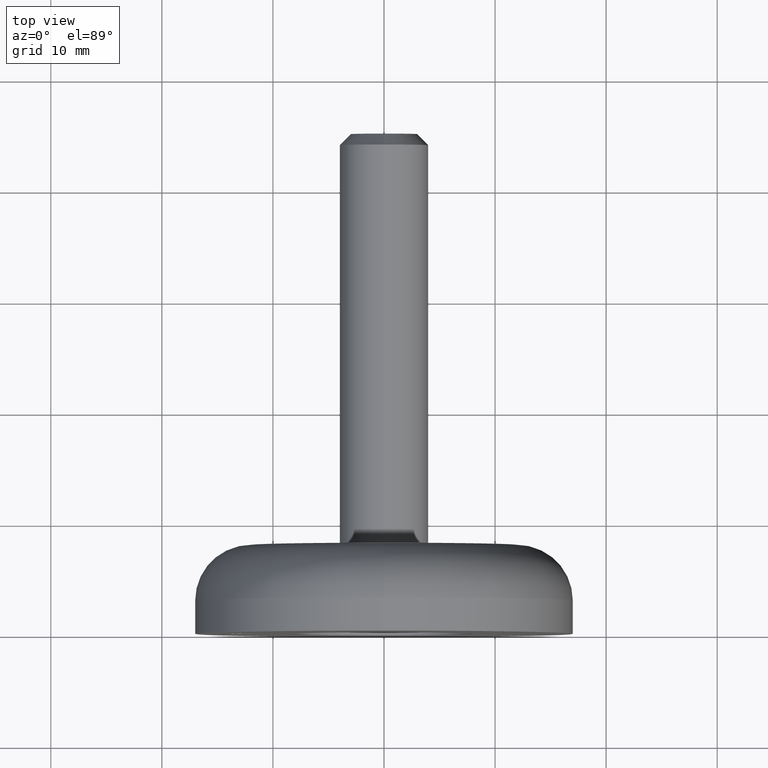
[diagram: clean part render]
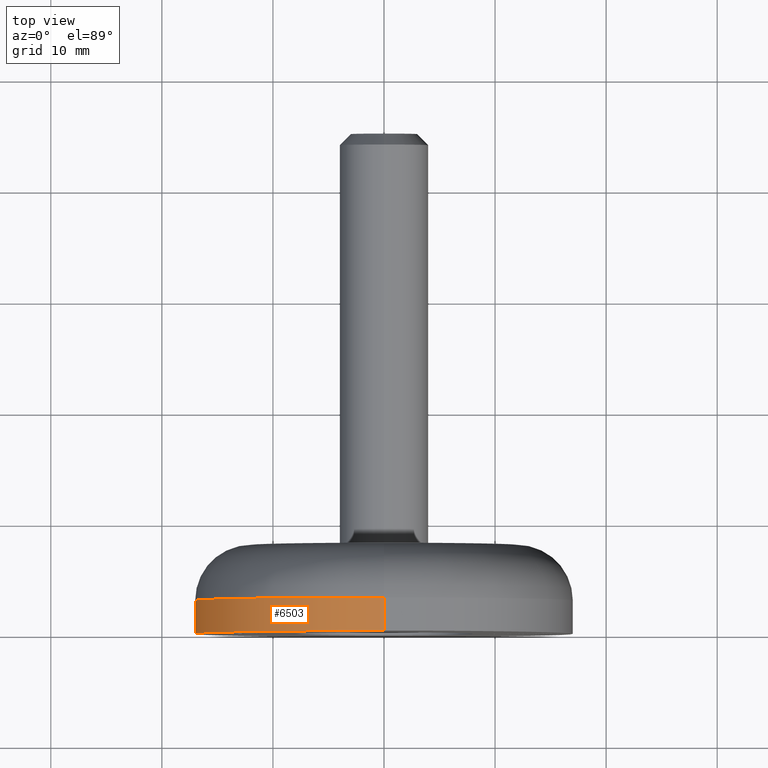
[diagram: same view with one face highlighted and labeled with its STEP entity id]
A machine part, top view. The second image highlights one B-rep face of the part: STEP entity #6503.
In plain terms, the highlighted cylindrical surface (partial cylindrical patch) has radius 17 mm, axis along (-0, -1, -0).
Its self-contained STEP definition (entity closure, byte-faithful):
#78 = DIRECTION ( 'NONE',  ( 0.000000000000000000, 0.000000000000000000, -1.000000000000000000 ) ) ;
#843 = EDGE_CURVE ( 'NONE', #5399, #1057, #13722, .T. ) ;
#1057 = VERTEX_POINT ( 'NONE', #12553 ) ;
#1315 = DIRECTION ( 'NONE',  ( -0.000000000000000000, -1.000000000000000000, -0.000000000000000000 ) ) ;
#1446 = ORIENTED_EDGE ( 'NONE', *, *, #843, .F. ) ;
#2145 = CIRCLE ( 'NONE', #7940, 17.00000000000000000 ) ;
#2298 = DIRECTION ( 'NONE',  ( -0.000000000000000000, -1.000000000000000000, -0.000000000000000000 ) ) ;
#2371 = EDGE_LOOP ( 'NONE', ( #1446, #4662, #3829, #6840 ) ) ;
#2818 = CARTESIAN_POINT ( 'NONE',  ( 0.000000000000000000, 1.836970198721010336E-17, 0.000000000000000000 ) ) ;
#3215 = AXIS2_PLACEMENT_3D ( 'NONE', #3712, #1315, #7264 ) ;
#3712 = CARTESIAN_POINT ( 'NONE',  ( 0.000000000000000000, 2.999999999999998224, 0.000000000000000000 ) ) ;
#3829 = ORIENTED_EDGE ( 'NONE', *, *, #9680, .T. ) ;
#4016 = AXIS2_PLACEMENT_3D ( 'NONE', #9653, #8262, #78 ) ;
#4514 = CARTESIAN_POINT ( 'NONE',  ( 2.081899558550500280E-15, 2.999999999999998224, 17.00000000000000000 ) ) ;
#4662 = ORIENTED_EDGE ( 'NONE', *, *, #7091, .T. ) ;
#5399 = VERTEX_POINT ( 'NONE', #4514 ) ;
#5664 = VECTOR ( 'NONE', #2298, 1000.000000000000000 ) ;
#5797 = VERTEX_POINT ( 'NONE', #5816 ) ;
#5816 = CARTESIAN_POINT ( 'NONE',  ( 0.000000000000000000, 1.836970198721010336E-17, -17.00000000000000000 ) ) ;
#5896 = CARTESIAN_POINT ( 'NONE',  ( 0.000000000000000000, 0.000000000000000000, -17.00000000000000000 ) ) ;
#6503 = ADVANCED_FACE ( 'NONE', ( #11730 ), #11009, .T. ) ;
#6840 = ORIENTED_EDGE ( 'NONE', *, *, #7505, .F. ) ;
#7091 = EDGE_CURVE ( 'NONE', #5399, #7720, #14310, .T. ) ;
#7264 = DIRECTION ( 'NONE',  ( 0.000000000000000000, 0.000000000000000000, 1.000000000000000000 ) ) ;
#7505 = EDGE_CURVE ( 'NONE', #1057, #5797, #2145, .T. ) ;
#7720 = VERTEX_POINT ( 'NONE', #11957 ) ;
#7940 = AXIS2_PLACEMENT_3D ( 'NONE', #2818, #13411, #11063 ) ;
#8234 = DIRECTION ( 'NONE',  ( -0.000000000000000000, -1.000000000000000000, -0.000000000000000000 ) ) ;
#8262 = DIRECTION ( 'NONE',  ( -0.000000000000000000, -1.000000000000000000, -0.000000000000000000 ) ) ;
#9091 = VECTOR ( 'NONE', #8234, 1000.000000000000000 ) ;
#9653 = CARTESIAN_POINT ( 'NONE',  ( 0.000000000000000000, 0.000000000000000000, 0.000000000000000000 ) ) ;
#9680 = EDGE_CURVE ( 'NONE', #7720, #5797, #12785, .T. ) ;
#11009 = CYLINDRICAL_SURFACE ( 'NONE', #4016, 17.00000000000000000 ) ;
#11063 = DIRECTION ( 'NONE',  ( 0.000000000000000000, 0.000000000000000000, -1.000000000000000000 ) ) ;
#11730 = FACE_OUTER_BOUND ( 'NONE', #2371, .T. ) ;
#11957 = CARTESIAN_POINT ( 'NONE',  ( 0.000000000000000000, 2.999999999999998224, -17.00000000000000000 ) ) ;
#12553 = CARTESIAN_POINT ( 'NONE',  ( 2.081899558550500280E-15, 1.836970198721010336E-17, 17.00000000000000000 ) ) ;
#12785 = LINE ( 'NONE', #5896, #9091 ) ;
#13411 = DIRECTION ( 'NONE',  ( -0.000000000000000000, -1.000000000000000000, -0.000000000000000000 ) ) ;
#13722 = LINE ( 'NONE', #15191, #5664 ) ;
#14310 = CIRCLE ( 'NONE', #3215, 17.00000000000000000 ) ;
#15191 = CARTESIAN_POINT ( 'NONE',  ( 2.081899558550500280E-15, 0.000000000000000000, 17.00000000000000000 ) ) ;